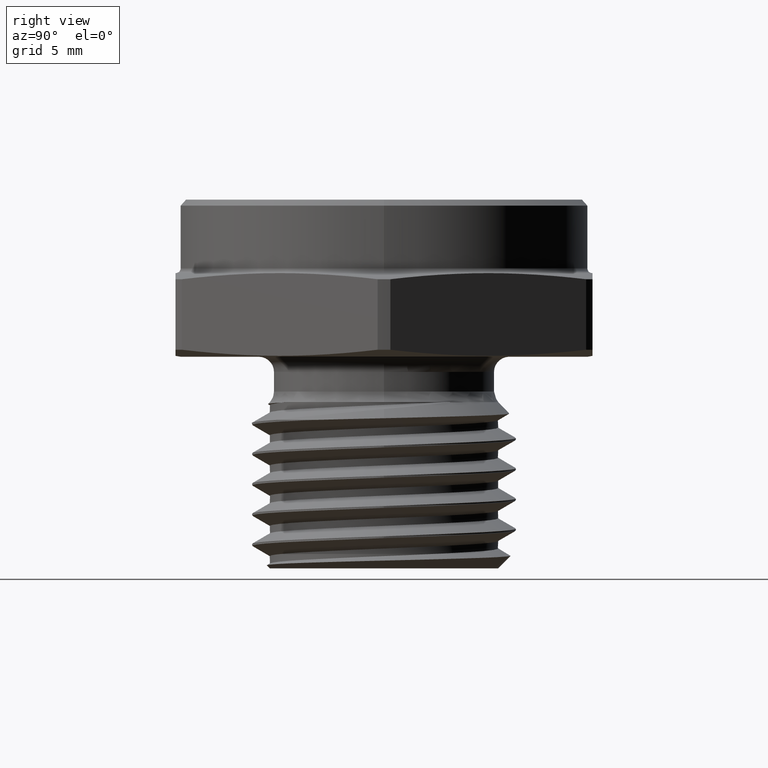
[diagram: clean part render]
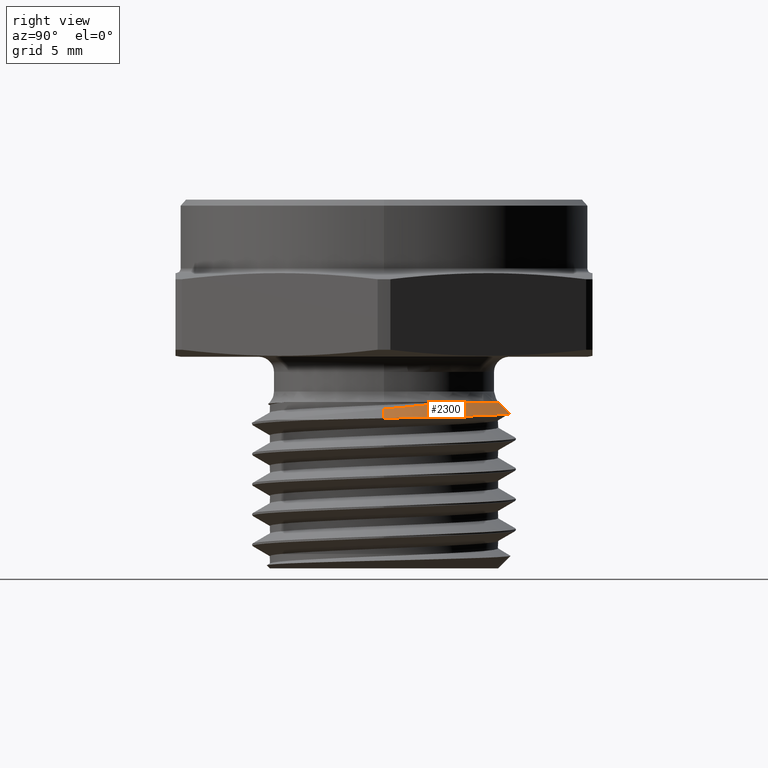
[diagram: same view with one face highlighted and labeled with its STEP entity id]
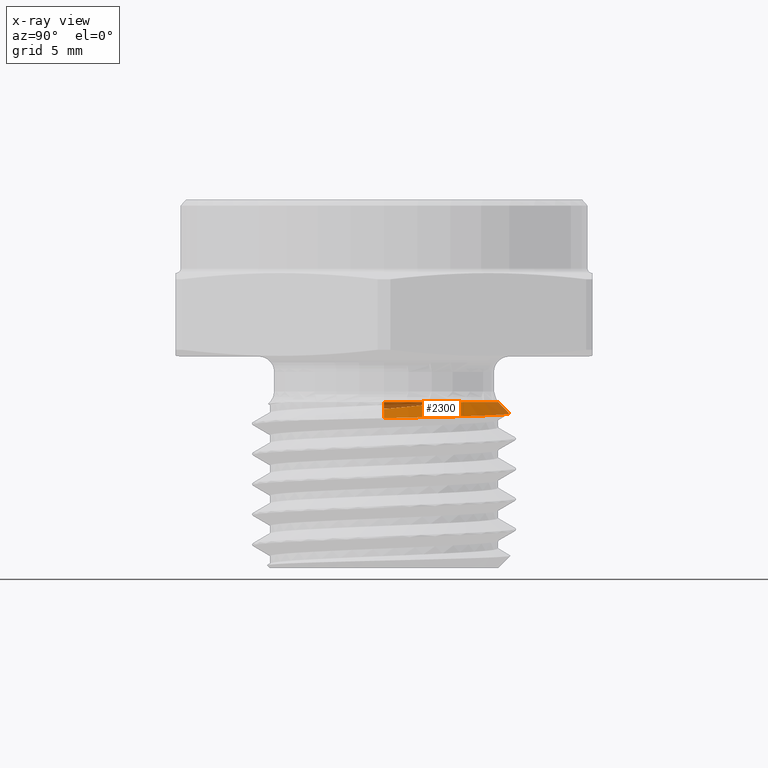
[diagram: x-ray of the same camera — body ghosted, the highlighted face saturated]
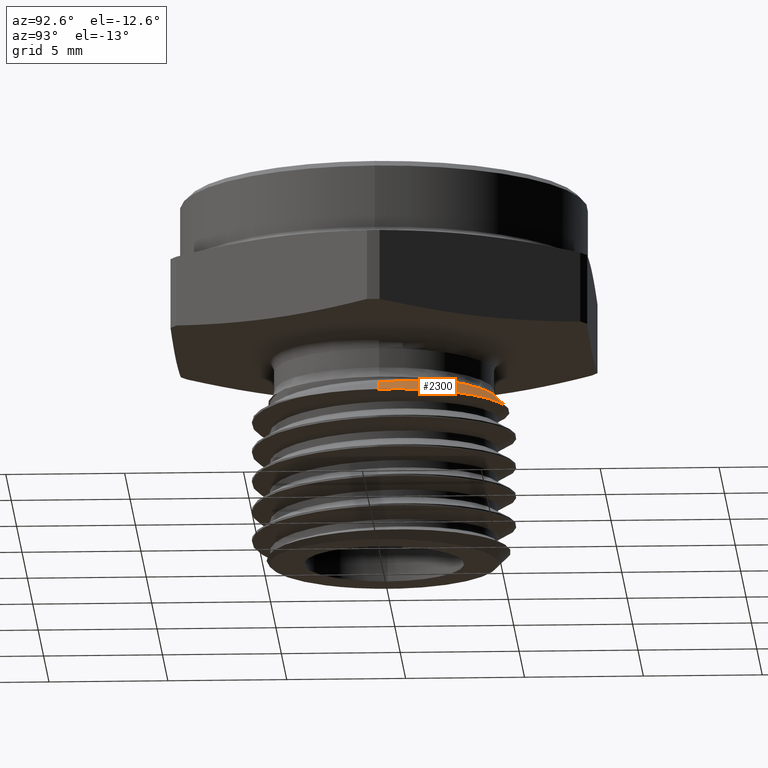
[diagram: same view with one face highlighted and labeled with its STEP entity id]
A machine part, right view. The second image highlights one B-rep face of the part: STEP entity #2300.
The next image is the same camera in x-ray: the body ghosted, the highlighted face saturated — about 14% of this face is hidden behind the body in this view.
A second angle (auxiliary view) of the same face is appended — the face is thin or edge-on in the first view.
In plain terms, the highlighted conical surface has half-angle 45 deg.
Its self-contained STEP definition (entity closure, byte-faithful):
#42 = CIRCLE ( 'NONE', #2021, 0.1893223304703363600 ) ;
#59 = LINE ( 'NONE', #1463, #60 ) ;
#60 = VECTOR ( 'NONE', #1465, 39.37007874015748900 ) ;
#133 = FACE_OUTER_BOUND ( 'NONE', #234, .T. ) ;
#136 = CONICAL_SURFACE ( 'NONE', #2066, 0.1893223304703363600, 0.7853981633974489500 ) ;
#169 = LINE ( 'NONE', #1520, #171 ) ;
#171 = VECTOR ( 'NONE', #1522, 39.37007874015748900 ) ;
#234 = EDGE_LOOP ( 'NONE', ( #2834, #2835, #2836, #2837, #2838 ) ) ;
#1399 = CARTESIAN_POINT ( 'NONE',  ( 0.0000000000000000000, 0.0000000000000000000, -0.07499999999999998300 ) ) ;
#1400 = DIRECTION ( 'NONE',  ( -0.0000000000000000000, -0.0000000000000000000, 1.000000000000000000 ) ) ;
#1401 = DIRECTION ( 'NONE',  ( 1.000000000000000000, 0.0000000000000000000, 0.0000000000000000000 ) ) ;
#1463 = CARTESIAN_POINT ( 'NONE',  ( -0.1893223304703363600, 0.0000000000000000000, -0.07499999999999998300 ) ) ;
#1465 = DIRECTION ( 'NONE',  ( -0.7071067811865479100, 0.0000000000000000000, -0.7071067811865470200 ) ) ;
#1466 = CARTESIAN_POINT ( 'NONE',  ( 0.1999511666152689900, 0.009848937935752501800, -0.08562883614493248300 ) ) ;
#1471 = CARTESIAN_POINT ( 'NONE',  ( 0.2008265802793533200, 4.160693725021959300E-016, -0.08650424980901681700 ) ) ;
#1475 = CARTESIAN_POINT ( 'NONE',  ( 0.1982904996274097400, 0.01977432223590997900, -0.08470766561282734600 ) ) ;
#1476 = CARTESIAN_POINT ( 'NONE',  ( 0.1935196817891513800, 0.03899799100513835800, -0.08284131683995771300 ) ) ;
#1477 = CARTESIAN_POINT ( 'NONE',  ( 0.1904193068771118900, 0.04834092908018487000, -0.08189287475915151000 ) ) ;
#1478 = CARTESIAN_POINT ( 'NONE',  ( 0.1790102944280549900, 0.07557648535186729800, -0.07899783474472761600 ) ) ;
#1479 = CARTESIAN_POINT ( 'NONE',  ( 0.1684682309084813400, 0.09279987598841295300, -0.07698321840630524500 ) ) ;
#1480 = CARTESIAN_POINT ( 'NONE',  ( 0.1554935903238723600, 0.1080031859850024000, -0.07499999999999999700 ) ) ;
#1500 = CARTESIAN_POINT ( 'NONE',  ( -0.2004180659978067600, 0.01357369308068306900, -0.08609573552747035200 ) ) ;
#1520 = CARTESIAN_POINT ( 'NONE',  ( 0.1893223304703363600, 2.318529860176148600E-017, -0.07499999999999998300 ) ) ;
#1521 = CARTESIAN_POINT ( 'NONE',  ( -0.2000936050877691100, -4.390551983193151300E-016, -0.08577127461743272500 ) ) ;
#1522 = DIRECTION ( 'NONE',  ( 0.7071067811865479100, 8.659560562354937800E-017, -0.7071067811865470200 ) ) ;
#1523 = CARTESIAN_POINT ( 'NONE',  ( -0.1993869472226497700, 0.02712048841620950600, -0.08643151133080924400 ) ) ;
#1524 = CARTESIAN_POINT ( 'NONE',  ( -0.1945169329049508700, 0.05415838086763224300, -0.08712591794143455200 ) ) ;
#1525 = CARTESIAN_POINT ( 'NONE',  ( -0.1907430725000325000, 0.06725256788850693400, -0.08747440792648031300 ) ) ;
#1526 = CARTESIAN_POINT ( 'NONE',  ( -0.1831865475959484100, 0.08614579979949776900, -0.08799532583164923500 ) ) ;
#1527 = CARTESIAN_POINT ( 'NONE',  ( -0.1803478615359016300, 0.09232574568700406500, -0.08816886520605279900 ) ) ;
#1528 = CARTESIAN_POINT ( 'NONE',  ( -0.1740154400078100000, 0.1044443833680450700, -0.08851576365269196700 ) ) ;
#1529 = CARTESIAN_POINT ( 'NONE',  ( -0.1705118318079797100, 0.1103898090755108100, -0.08868937042158550600 ) ) ;
#1530 = CARTESIAN_POINT ( 'NONE',  ( -0.1592490435410940900, 0.1274603947113194500, -0.08919826786772243300 ) ) ;
#1531 = CARTESIAN_POINT ( 'NONE',  ( -0.1506757276741692600, 0.1379646614691335500, -0.08952073507158978000 ) ) ;
#1532 = CARTESIAN_POINT ( 'NONE',  ( -0.1314309302116996000, 0.1572457852528982300, -0.09016458608231295300 ) ) ;
#1533 = CARTESIAN_POINT ( 'NONE',  ( -0.1207264959754109400, 0.1660185779548078400, -0.09050201011767927700 ) ) ;
#1534 = CARTESIAN_POINT ( 'NONE',  ( -0.09813578205335184200, 0.1810616243210271500, -0.09117681542002900600 ) ) ;
#1535 = CARTESIAN_POINT ( 'NONE',  ( -0.08614758239625437700, 0.1874493117071313300, -0.09151777237655962800 ) ) ;
#1536 = CARTESIAN_POINT ( 'NONE',  ( -0.06073479196232647900, 0.1978740395845864100, -0.09220696048872724400 ) ) ;
#1537 = CARTESIAN_POINT ( 'NONE',  ( -0.04767559195355601500, 0.2017546446731285600, -0.09254521363144679900 ) ) ;
#1538 = CARTESIAN_POINT ( 'NONE',  ( -0.02770788358596185500, 0.2056148291146497100, -0.09304028739149040900 ) ) ;
#1539 = CARTESIAN_POINT ( 'NONE',  ( -0.02098117091500049200, 0.2065752436764696800, -0.09320344263788814300 ) ) ;
#1540 = CARTESIAN_POINT ( 'NONE',  ( -0.007383056216096124300, 0.2078292919507744000, -0.09352600313630873900 ) ) ;
#1541 = CARTESIAN_POINT ( 'NONE',  ( -0.0004859839559684209000, 0.2081174857695695400, -0.09368384302838646300 ) ) ;
#1542 = CARTESIAN_POINT ( 'NONE',  ( 0.01998857355953596900, 0.2079699823869434700, -0.09415988279373029000 ) ) ;
#1543 = CARTESIAN_POINT ( 'NONE',  ( 0.03347788069887005400, 0.2065541207019981300, -0.09448471069791539200 ) ) ;
#1544 = CARTESIAN_POINT ( 'NONE',  ( 0.06013883156952130900, 0.2011129868600641500, -0.09514871696271627600 ) ) ;
#1545 = CARTESIAN_POINT ( 'NONE',  ( 0.07337768785438827900, 0.1970308041438333400, -0.09548992837930460300 ) ) ;
#1546 = CARTESIAN_POINT ( 'NONE',  ( 0.09842623340030752500, 0.1865440106470380700, -0.09615843453402481100 ) ) ;
#1547 = CARTESIAN_POINT ( 'NONE',  ( 0.1103762485452974800, 0.1801265697261143800, -0.09648909370520836200 ) ) ;
#1548 = CARTESIAN_POINT ( 'NONE',  ( 0.1274202454378414500, 0.1686992016945205200, -0.09697977410858416000 ) ) ;
#1549 = CARTESIAN_POINT ( 'NONE',  ( 0.1329513577572724300, 0.1645833842013910700, -0.09714242856210930600 ) ) ;
#1550 = CARTESIAN_POINT ( 'NONE',  ( 0.1434756879391123600, 0.1559244619792282400, -0.09745892767371824900 ) ) ;
#1551 = CARTESIAN_POINT ( 'NONE',  ( 0.1485000440478535500, 0.1513597090475397600, -0.09761185317255523200 ) ) ;
#1552 = CARTESIAN_POINT ( 'NONE',  ( 0.1628843836832832000, 0.1369846443259657200, -0.09807449058362546800 ) ) ;
#1553 = CARTESIAN_POINT ( 'NONE',  ( 0.1716073119169588500, 0.1264412284664583900, -0.09839521921786290000 ) ) ;
#1554 = CARTESIAN_POINT ( 'NONE',  ( 0.1869608304730825400, 0.1037368198517352300, -0.09905054060285341200 ) ) ;
#1555 = CARTESIAN_POINT ( 'NONE',  ( 0.1934474138068496000, 0.09181518079111714000, -0.09937840648045319400 ) ) ;
#1556 = CARTESIAN_POINT ( 'NONE',  ( 0.2041115639472085000, 0.06686716058187296100, -0.1000344360249246500 ) ) ;
#1557 = CARTESIAN_POINT ( 'NONE',  ( 0.2083118167589002600, 0.05369142852417947000, -0.1003661029912663600 ) ) ;
#1558 = CARTESIAN_POINT ( 'NONE',  ( 0.2140572808077939300, 0.02705990098714521800, -0.1010083423844549300 ) ) ;
#1559 = CARTESIAN_POINT ( 'NONE',  ( 0.2156417149831962300, 0.01360115476337770200, -0.1013193845128600300 ) ) ;
#1560 = CARTESIAN_POINT ( 'NONE',  ( 0.2159429699931581000, -5.801722423529640300E-016, -0.1016206395228216900 ) ) ;
#1704 = DIRECTION ( 'NONE',  ( -1.000000000000000000, 0.0000000000000000000, 0.0000000000000000000 ) ) ;
#1706 = CARTESIAN_POINT ( 'NONE',  ( 0.0000000000000000000, 0.0000000000000000000, -0.07499999999999998300 ) ) ;
#1707 = DIRECTION ( 'NONE',  ( 0.0000000000000000000, 0.0000000000000000000, -1.000000000000000000 ) ) ;
#1782 = CARTESIAN_POINT ( 'NONE',  ( 0.2159429699931581000, -5.801722423529640300E-016, -0.1016206395228216900 ) ) ;
#1783 = CARTESIAN_POINT ( 'NONE',  ( -0.2000936050877691100, -4.390551983193151300E-016, -0.08577127461743272500 ) ) ;
#1785 = CARTESIAN_POINT ( 'NONE',  ( 0.1554935903238723600, 0.1080031859850024000, -0.07499999999999999700 ) ) ;
#1788 = CARTESIAN_POINT ( 'NONE',  ( -0.1893223304703363600, 0.0000000000000000000, -0.07499999999999998300 ) ) ;
#1789 = CARTESIAN_POINT ( 'NONE',  ( 0.2008265802793533200, 4.160693725021959300E-016, -0.08650424980901681700 ) ) ;
#1895 = EDGE_CURVE ( 'NONE', #2349, #2352, #42, .T. ) ;
#1905 = EDGE_CURVE ( 'NONE', #2352, #2347, #59, .T. ) ;
#1909 = EDGE_CURVE ( 'NONE', #2353, #2349, #2875, .T. ) ;
#1915 = EDGE_CURVE ( 'NONE', #2353, #2346, #169, .T. ) ;
#1916 = EDGE_CURVE ( 'NONE', #2347, #2346, #2879, .T. ) ;
#2021 = AXIS2_PLACEMENT_3D ( 'NONE', #1399, #1400, #1401 ) ;
#2066 = AXIS2_PLACEMENT_3D ( 'NONE', #1706, #1707, #1704 ) ;
#2300 = ADVANCED_FACE ( 'NONE', ( #133 ), #136, .T. ) ;
#2346 = VERTEX_POINT ( 'NONE', #1782 ) ;
#2347 = VERTEX_POINT ( 'NONE', #1783 ) ;
#2349 = VERTEX_POINT ( 'NONE', #1785 ) ;
#2352 = VERTEX_POINT ( 'NONE', #1788 ) ;
#2353 = VERTEX_POINT ( 'NONE', #1789 ) ;
#2834 = ORIENTED_EDGE ( 'NONE', *, *, #1909, .F. ) ;
#2835 = ORIENTED_EDGE ( 'NONE', *, *, #1915, .T. ) ;
#2836 = ORIENTED_EDGE ( 'NONE', *, *, #1916, .F. ) ;
#2837 = ORIENTED_EDGE ( 'NONE', *, *, #1905, .F. ) ;
#2838 = ORIENTED_EDGE ( 'NONE', *, *, #1895, .F. ) ;
#2875 = B_SPLINE_CURVE_WITH_KNOTS ( 'NONE', 3,
 ( #1471, #1466, #1475, #1476, #1477, #1478, #1479, #1480 ),
 .UNSPECIFIED., .F., .F.,
 ( 4, 2, 2, 4 ),
 ( 0.005110512790773767000, 0.005863471024549170300, 0.006616429258324574500, 0.008122345725875381900 ),
 .UNSPECIFIED. ) ;
#2879 = B_SPLINE_CURVE_WITH_KNOTS ( 'NONE', 3,
 ( #1521, #1500, #1523, #1524, #1525, #1526, #1527, #1528, #1529, #1530, #1531, #1532, #1533, #1534, #1535, #1536, #1537, #1538, #1539, #1540, #1541, #1542, #1543, #1544, #1545, #1546, #1547, #1548, #1549, #1550, #1551, #1552, #1553, #1554, #1555, #1556, #1557, #1558, #1559, #1560 ),
 .UNSPECIFIED., .F., .F.,
 ( 4, 2, 2, 2, 2, 2, 2, 2, 2, 2, 2, 2, 2, 2, 2, 2, 2, 2, 2, 4 ),
 ( 0.01049875019432536900, 0.01153272023958618700, 0.01256669028484700700, 0.01308367530747741600, 0.01360066033010782500, 0.01463463037536864500, 0.01566860042062946300, 0.01670257046589028100, 0.01773654051115110300, 0.01825352553378151200, 0.01877051055641192100, 0.01980448060167274200, 0.02083845064693356400, 0.02187242069219438200, 0.02238940571482479100, 0.02290639073745520000, 0.02394036078271602100, 0.02497433082797684300, 0.02600830087323766100, 0.02704227091849848200 ),
 .UNSPECIFIED. ) ;